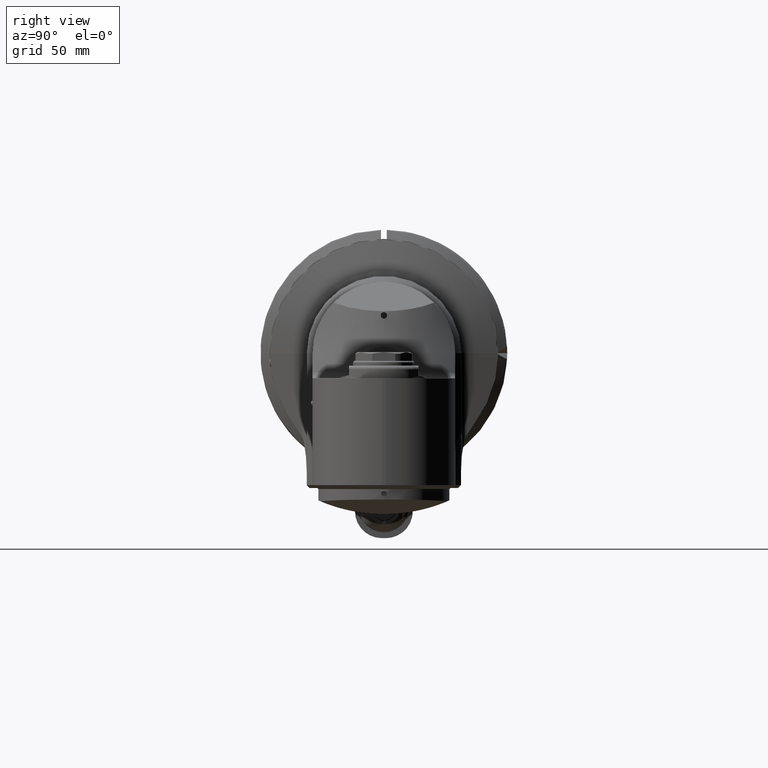
[diagram: clean part render]
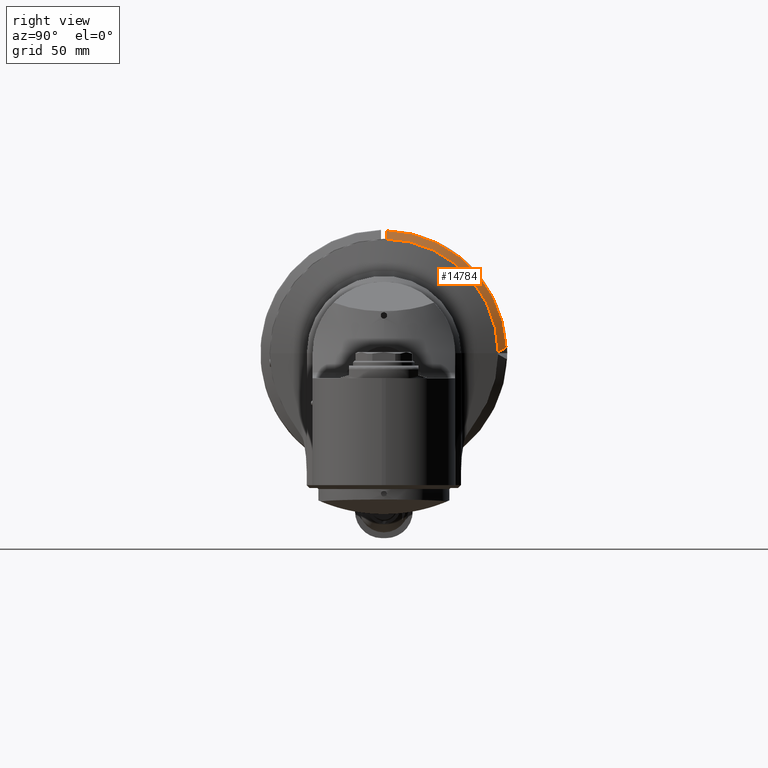
[diagram: same view with one face highlighted and labeled with its STEP entity id]
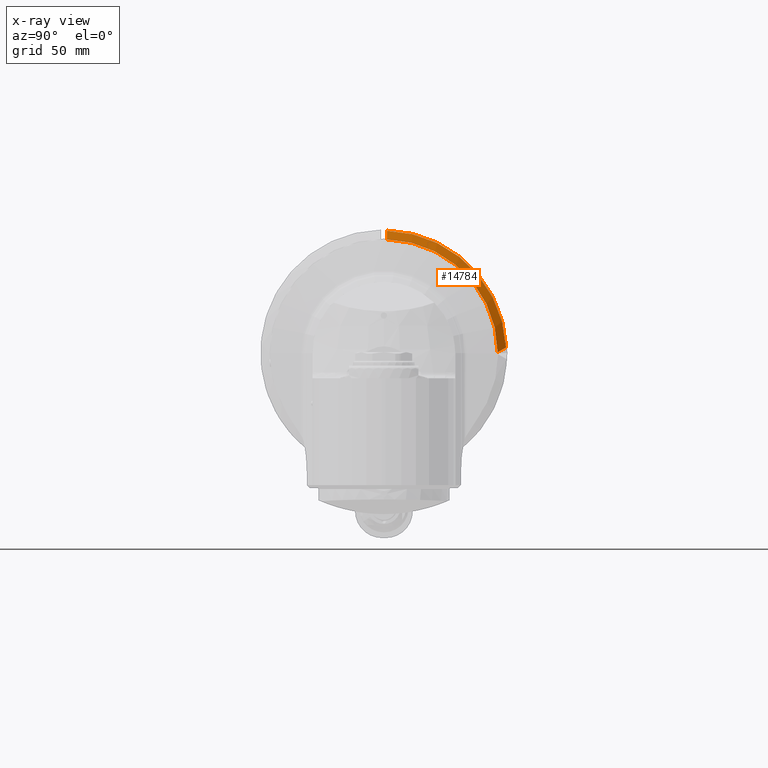
[diagram: x-ray of the same camera — body ghosted, the highlighted face saturated]
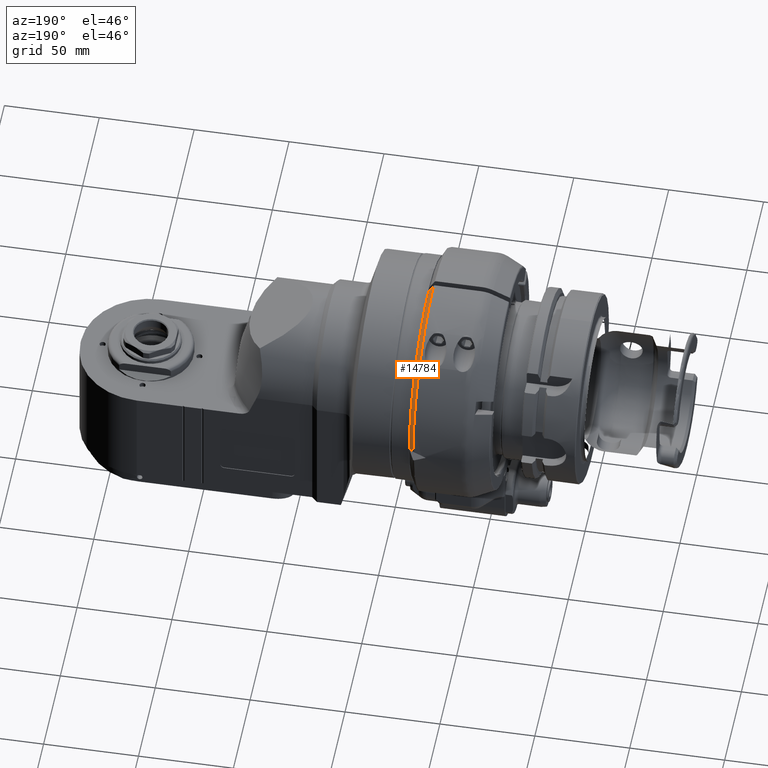
[diagram: same view with one face highlighted and labeled with its STEP entity id]
A machine part, right view. The second image highlights one B-rep face of the part: STEP entity #14784.
The next image is the same camera in x-ray: the body ghosted, the highlighted face saturated — about 0% of this face is hidden behind the body in this view.
A second angle (auxiliary view) of the same face is appended — the face is thin or edge-on in the first view.
In plain terms, the highlighted conical surface has half-angle 60 deg.
Its self-contained STEP definition (entity closure, byte-faithful):
#123=B_SPLINE_CURVE_WITH_KNOTS('',3,(#24403,#24404,#24405,#24406,#24407,
#24408,#24409,#24410,#24411,#24412),.UNSPECIFIED.,.F.,.F.,(4,3,3,4),(0.,
0.33333333333335,0.6666666666667,1.),.UNSPECIFIED.);
#313=(
BOUNDED_CURVE()
B_SPLINE_CURVE(2,(#24438,#24439,#24440),.UNSPECIFIED.,.F.,.F.)
B_SPLINE_CURVE_WITH_KNOTS((3,3),(0.261472604486974,0.893733534605406),
 .UNSPECIFIED.)
CURVE()
GEOMETRIC_REPRESENTATION_ITEM()
RATIONAL_B_SPLINE_CURVE((1.00315426750511,1.00652187643408,1.00773245337786))
REPRESENTATION_ITEM('')
);
#427=CONICAL_SURFACE('',#15929,61.25,1.0471975511966);
#3865=FACE_OUTER_BOUND('',#4738,.T.);
#4738=EDGE_LOOP('',(#11079,#11080,#11081,#11082));
#5711=CIRCLE('',#15878,63.5);
#5730=CIRCLE('',#15926,59.);
#6571=VERTEX_POINT('',#24400);
#6572=VERTEX_POINT('',#24402);
#6575=VERTEX_POINT('',#24426);
#6576=VERTEX_POINT('',#24437);
#8289=EDGE_CURVE('',#6572,#6571,#123,.T.);
#8293=EDGE_CURVE('',#6572,#6575,#5711,.T.);
#8295=EDGE_CURVE('',#6576,#6575,#313,.T.);
#8347=EDGE_CURVE('',#6576,#6571,#5730,.T.);
#11079=ORIENTED_EDGE('',*,*,#8293,.F.);
#11080=ORIENTED_EDGE('',*,*,#8289,.T.);
#11081=ORIENTED_EDGE('',*,*,#8347,.F.);
#11082=ORIENTED_EDGE('',*,*,#8295,.T.);
#14784=ADVANCED_FACE('',(#3865),#427,.T.);
#15878=AXIS2_PLACEMENT_3D('',#24427,#18091,#18092);
#15926=AXIS2_PLACEMENT_3D('',#24687,#18202,#18203);
#15929=AXIS2_PLACEMENT_3D('',#24692,#18208,#18209);
#18091=DIRECTION('center_axis',(0.,1.,0.));
#18092=DIRECTION('ref_axis',(0.0236220448213206,0.,0.999720960567727));
#18202=DIRECTION('center_axis',(0.,-1.,0.));
#18203=DIRECTION('ref_axis',(0.999973237557454,0.,0.00731602138204067));
#18208=DIRECTION('center_axis',(0.,1.,0.));
#18209=DIRECTION('ref_axis',(0.,0.,-1.));
#24400=CARTESIAN_POINT('',(1.499999846154,0.,58.98092912511));
#24402=CARTESIAN_POINT('',(1.49999990021584,2.59807357095885,63.4822764199957));
#24403=CARTESIAN_POINT('Ctrl Pts',(1.499999846154,2.598070931465,63.48227184788));
#24404=CARTESIAN_POINT('Ctrl Pts',(1.499999846154,2.30040311888295,62.9665521665799));
#24405=CARTESIAN_POINT('Ctrl Pts',(1.499999846154,2.00572656730495,62.4560114403049));
#24406=CARTESIAN_POINT('Ctrl Pts',(1.499999846154,1.71407765020625,61.9507126453824));
#24407=CARTESIAN_POINT('Ctrl Pts',(1.499999846154,1.42242873310754,61.4454138504599));
#24408=CARTESIAN_POINT('Ctrl Pts',(1.499999846154,1.13380745048813,60.9453569868899));
#24409=CARTESIAN_POINT('Ctrl Pts',(1.499999846154,0.84813643451843,60.4504079677199));
#24410=CARTESIAN_POINT('Ctrl Pts',(1.499999846154,0.562465418548754,59.9554589485499));
#24411=CARTESIAN_POINT('Ctrl Pts',(1.499999846154,0.279744669228798,59.46561777378));
#24412=CARTESIAN_POINT('Ctrl Pts',(1.499999846154,0.,58.98092912511));
#24426=CARTESIAN_POINT('',(63.430465527419,2.59807633635185,2.9708703221233));
#24427=CARTESIAN_POINT('Origin',(0.,2.598076211353,0.));
#24437=CARTESIAN_POINT('',(58.9984211035747,2.48269226475992E-8,0.431645372949116));
#24438=CARTESIAN_POINT('Ctrl Pts',(58.9984211155681,5.77906837036096E-8,
0.431645318968699));
#24439=CARTESIAN_POINT('Ctrl Pts',(61.1205312824037,1.2303324421102,1.65428044091784));
#24440=CARTESIAN_POINT('Ctrl Pts',(63.4304655588955,2.59807635256255,2.970870250206));
#24687=CARTESIAN_POINT('Origin',(0.,-2.13162820728E-14,0.));
#24692=CARTESIAN_POINT('Origin',(0.,1.299038105677,0.));